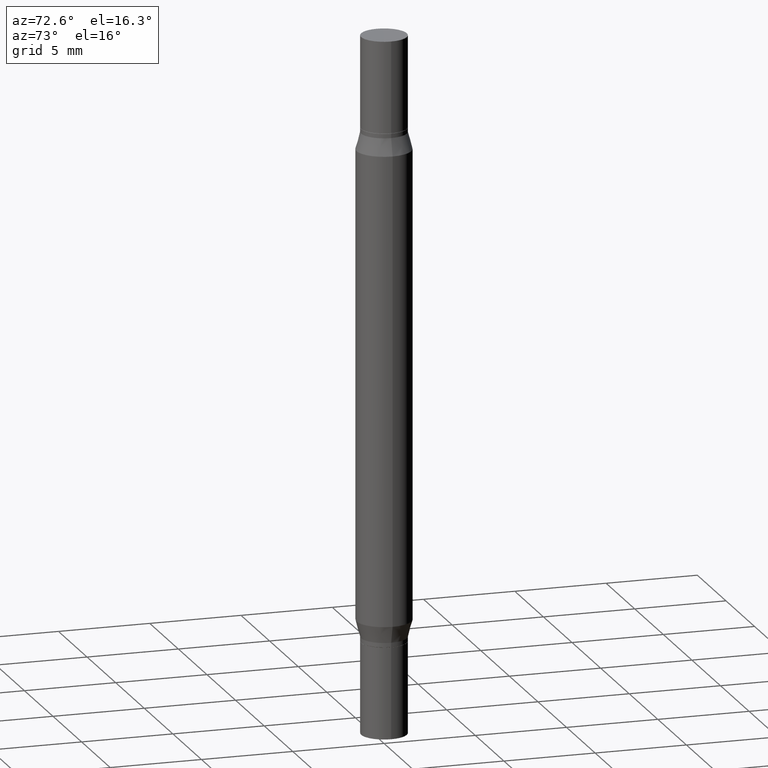
[diagram: clean part render]
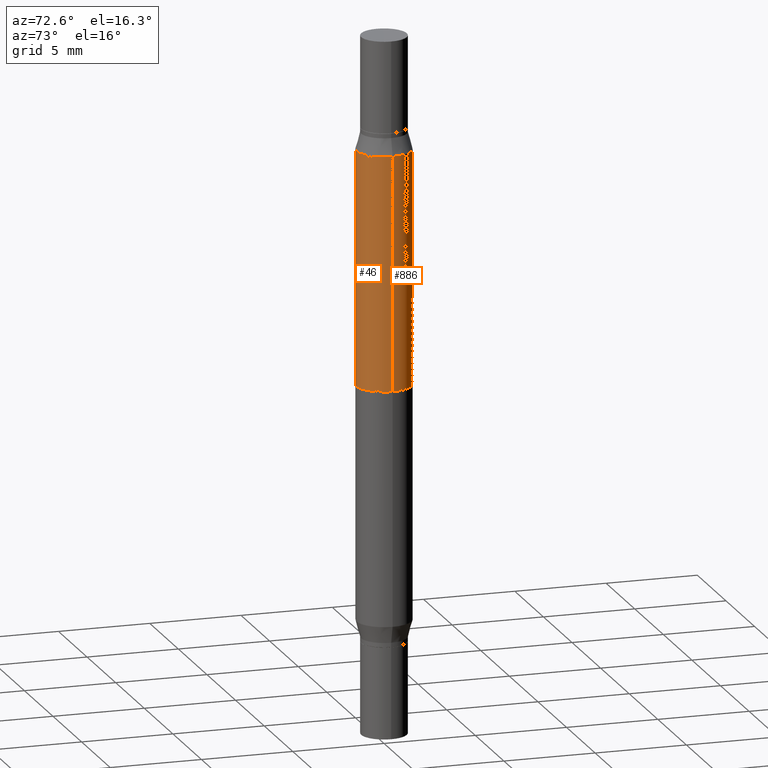
[diagram: same view with one multi-face feature highlighted, each face labeled with its STEP entity id]
A machine part, auxiliary view. The highlighted faces form ONE feature: a constant-radius fillet chain: 2 tangent blend faces with common blend radius 1.4999 mm. The faces share edges in the B-rep.
Their STEP definitions:
[1] entity #886 (Cylinder):
#49 = DIRECTION ( 'NONE',  ( -2.445468806185136877E-29, -3.491805094961123683E-15, -1.000000000000000000 ) ) ;
#53 = VECTOR ( 'NONE', #840, 39.37007874015748143 ) ;
#87 = AXIS2_PLACEMENT_3D ( 'NONE', #651, #589, #660 ) ;
#131 = FACE_OUTER_BOUND ( 'NONE', #960, .T. ) ;
#132 = CARTESIAN_POINT ( 'NONE',  ( 0.05904999999999999832, -1.263266616151821658E-15, -0.2437607004545535860 ) ) ;
#137 = CYLINDRICAL_SURFACE ( 'NONE', #87, 0.05904999999999999832 ) ;
#150 = EDGE_CURVE ( 'NONE', #969, #896, #780, .T. ) ;
#165 = CARTESIAN_POINT ( 'NONE',  ( 0.05904999999999999832, -5.636191362924657961E-15, -1.496099999999999985 ) ) ;
#227 = DIRECTION ( 'NONE',  ( 1.000000000000000000, -6.982962677686265133E-15, 0.000000000000000000 ) ) ;
#329 = CARTESIAN_POINT ( 'NONE',  ( -0.05904999999999999832, -4.458102632660388560E-16, -0.2437607004545535860 ) ) ;
#368 = DIRECTION ( 'NONE',  ( -0.000000000000000000, -3.491643216902134830E-15, -1.000000000000000000 ) ) ;
#386 = ORIENTED_EDGE ( 'NONE', *, *, #150, .F. ) ;
#388 = EDGE_CURVE ( 'NONE', #750, #896, #853, .T. ) ;
#405 = ORIENTED_EDGE ( 'NONE', *, *, #572, .F. ) ;
#414 = CARTESIAN_POINT ( 'NONE',  ( -0.05904999999999999832, -1.326250236009622014E-15, -0.7480499999999999927 ) ) ;
#425 = CIRCLE ( 'NONE', #933, 0.05904999999999999832 ) ;
#448 = EDGE_CURVE ( 'NONE', #750, #566, #425, .T. ) ;
#566 = VERTEX_POINT ( 'NONE', #329 ) ;
#572 = EDGE_CURVE ( 'NONE', #566, #969, #621, .T. ) ;
#589 = DIRECTION ( 'NONE',  ( -2.445468806185136597E-29, -3.491805094961124077E-15, -1.000000000000000000 ) ) ;
#599 = DIRECTION ( 'NONE',  ( 0.000000000000000000, 1.000000000000000000, -4.626330217890369336E-15 ) ) ;
#609 = AXIS2_PLACEMENT_3D ( 'NONE', #978, #368, #599 ) ;
#621 = LINE ( 'NONE', #648, #870 ) ;
#648 = CARTESIAN_POINT ( 'NONE',  ( -0.05904999999999999832, -4.818735010038875060E-15, -1.496099999999999985 ) ) ;
#651 = CARTESIAN_POINT ( 'NONE',  ( 0.000000000000000000, -5.223847416807283040E-15, -1.496099999999999985 ) ) ;
#660 = DIRECTION ( 'NONE',  ( 1.000000000000000000, -6.982962677686273021E-15, 0.000000000000000000 ) ) ;
#680 = ORIENTED_EDGE ( 'NONE', *, *, #448, .F. ) ;
#722 = ORIENTED_EDGE ( 'NONE', *, *, #388, .T. ) ;
#740 = DIRECTION ( 'NONE',  ( 2.445468806185136597E-29, 3.491805094961124077E-15, 1.000000000000000000 ) ) ;
#750 = VERTEX_POINT ( 'NONE', #132 ) ;
#780 = CIRCLE ( 'NONE', #609, 0.05904999999999999832 ) ;
#819 = CARTESIAN_POINT ( 'NONE',  ( 3.062556691798133272E-29, -8.509226700344482173E-16, -0.2437607004545535860 ) ) ;
#820 = CARTESIAN_POINT ( 'NONE',  ( 0.05904999999999999832, -2.143706588895405113E-15, -0.7480499999999999927 ) ) ;
#840 = DIRECTION ( 'NONE',  ( -2.445468806185136877E-29, -3.491805094961123683E-15, -1.000000000000000000 ) ) ;
#853 = LINE ( 'NONE', #165, #53 ) ;
#870 = VECTOR ( 'NONE', #49, 39.37007874015748143 ) ;
#886 = ADVANCED_FACE ( 'NONE', ( #131 ), #137, .T. ) ;
#896 = VERTEX_POINT ( 'NONE', #820 ) ;
#933 = AXIS2_PLACEMENT_3D ( 'NONE', #819, #740, #227 ) ;
#960 = EDGE_LOOP ( 'NONE', ( #405, #680, #722, #386 ) ) ;
#969 = VERTEX_POINT ( 'NONE', #414 ) ;
#978 = CARTESIAN_POINT ( 'NONE',  ( 1.829332940466791194E-29, -2.611802615521614830E-15, -0.7480499999999999927 ) ) ;
[2] entity #46 (Cylinder):
#46 = ADVANCED_FACE ( 'NONE', ( #498 ), #502, .T. ) ;
#49 = DIRECTION ( 'NONE',  ( -2.445468806185136877E-29, -3.491805094961123683E-15, -1.000000000000000000 ) ) ;
#53 = VECTOR ( 'NONE', #840, 39.37007874015748143 ) ;
#63 = ORIENTED_EDGE ( 'NONE', *, *, #357, .F. ) ;
#119 = DIRECTION ( 'NONE',  ( 1.000000000000000000, -6.982962677686273021E-15, 0.000000000000000000 ) ) ;
#132 = CARTESIAN_POINT ( 'NONE',  ( 0.05904999999999999832, -1.263266616151821658E-15, -0.2437607004545535860 ) ) ;
#135 = CIRCLE ( 'NONE', #577, 0.05904999999999999832 ) ;
#165 = CARTESIAN_POINT ( 'NONE',  ( 0.05904999999999999832, -5.636191362924657961E-15, -1.496099999999999985 ) ) ;
#241 = DIRECTION ( 'NONE',  ( 2.445468806185136597E-29, 3.491805094961124077E-15, 1.000000000000000000 ) ) ;
#324 = EDGE_CURVE ( 'NONE', #566, #750, #135, .T. ) ;
#329 = CARTESIAN_POINT ( 'NONE',  ( -0.05904999999999999832, -4.458102632660388560E-16, -0.2437607004545535860 ) ) ;
#357 = EDGE_CURVE ( 'NONE', #896, #969, #490, .T. ) ;
#387 = ORIENTED_EDGE ( 'NONE', *, *, #572, .T. ) ;
#388 = EDGE_CURVE ( 'NONE', #750, #896, #853, .T. ) ;
#400 = CARTESIAN_POINT ( 'NONE',  ( 1.829332940466791194E-29, -2.611802615521614830E-15, -0.7480499999999999927 ) ) ;
#414 = CARTESIAN_POINT ( 'NONE',  ( -0.05904999999999999832, -1.326250236009622014E-15, -0.7480499999999999927 ) ) ;
#428 = ORIENTED_EDGE ( 'NONE', *, *, #324, .F. ) ;
#477 = DIRECTION ( 'NONE',  ( -0.000000000000000000, -3.491643216902134830E-15, -1.000000000000000000 ) ) ;
#490 = CIRCLE ( 'NONE', #962, 0.05904999999999999832 ) ;
#498 = FACE_OUTER_BOUND ( 'NONE', #557, .T. ) ;
#502 = CYLINDRICAL_SURFACE ( 'NONE', #881, 0.05904999999999999832 ) ;
#557 = EDGE_LOOP ( 'NONE', ( #428, #387, #63, #910 ) ) ;
#566 = VERTEX_POINT ( 'NONE', #329 ) ;
#572 = EDGE_CURVE ( 'NONE', #566, #969, #621, .T. ) ;
#577 = AXIS2_PLACEMENT_3D ( 'NONE', #699, #241, #770 ) ;
#621 = LINE ( 'NONE', #648, #870 ) ;
#648 = CARTESIAN_POINT ( 'NONE',  ( -0.05904999999999999832, -4.818735010038875060E-15, -1.496099999999999985 ) ) ;
#699 = CARTESIAN_POINT ( 'NONE',  ( 3.062556691798133272E-29, -8.509226700344482173E-16, -0.2437607004545535860 ) ) ;
#750 = VERTEX_POINT ( 'NONE', #132 ) ;
#770 = DIRECTION ( 'NONE',  ( 1.000000000000000000, -6.982962677686265133E-15, 0.000000000000000000 ) ) ;
#773 = DIRECTION ( 'NONE',  ( 0.000000000000000000, 1.000000000000000000, -4.626330217890369336E-15 ) ) ;
#801 = DIRECTION ( 'NONE',  ( -2.445468806185136597E-29, -3.491805094961124077E-15, -1.000000000000000000 ) ) ;
#820 = CARTESIAN_POINT ( 'NONE',  ( 0.05904999999999999832, -2.143706588895405113E-15, -0.7480499999999999927 ) ) ;
#840 = DIRECTION ( 'NONE',  ( -2.445468806185136877E-29, -3.491805094961123683E-15, -1.000000000000000000 ) ) ;
#853 = LINE ( 'NONE', #165, #53 ) ;
#870 = VECTOR ( 'NONE', #49, 39.37007874015748143 ) ;
#881 = AXIS2_PLACEMENT_3D ( 'NONE', #959, #801, #119 ) ;
#896 = VERTEX_POINT ( 'NONE', #820 ) ;
#910 = ORIENTED_EDGE ( 'NONE', *, *, #388, .F. ) ;
#959 = CARTESIAN_POINT ( 'NONE',  ( 0.000000000000000000, -5.223847416807283040E-15, -1.496099999999999985 ) ) ;
#962 = AXIS2_PLACEMENT_3D ( 'NONE', #400, #477, #773 ) ;
#969 = VERTEX_POINT ( 'NONE', #414 ) ;